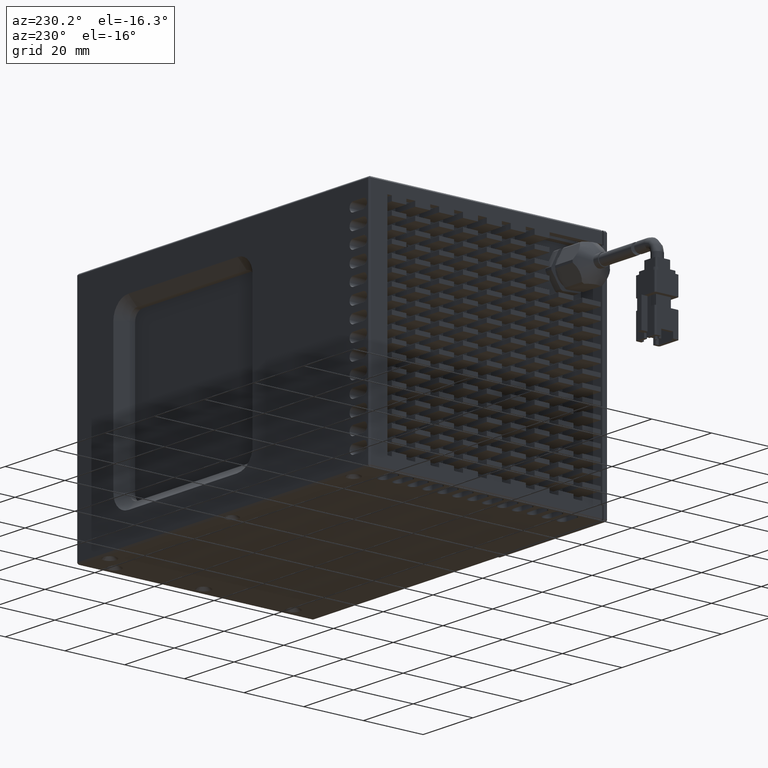
[diagram: clean part render]
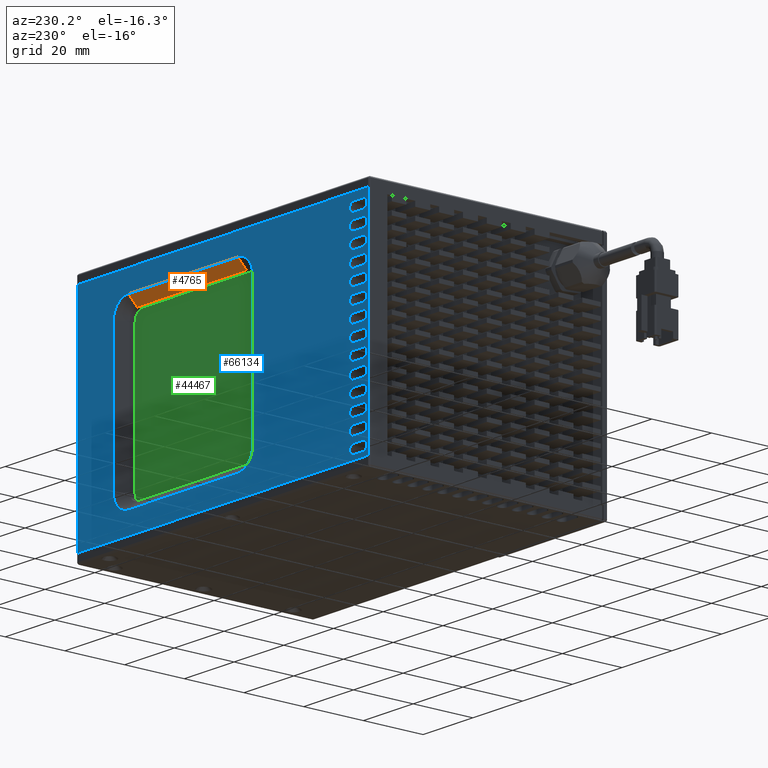
[diagram: same view with three faces highlighted in distinct colors, each labeled with its STEP entity id]
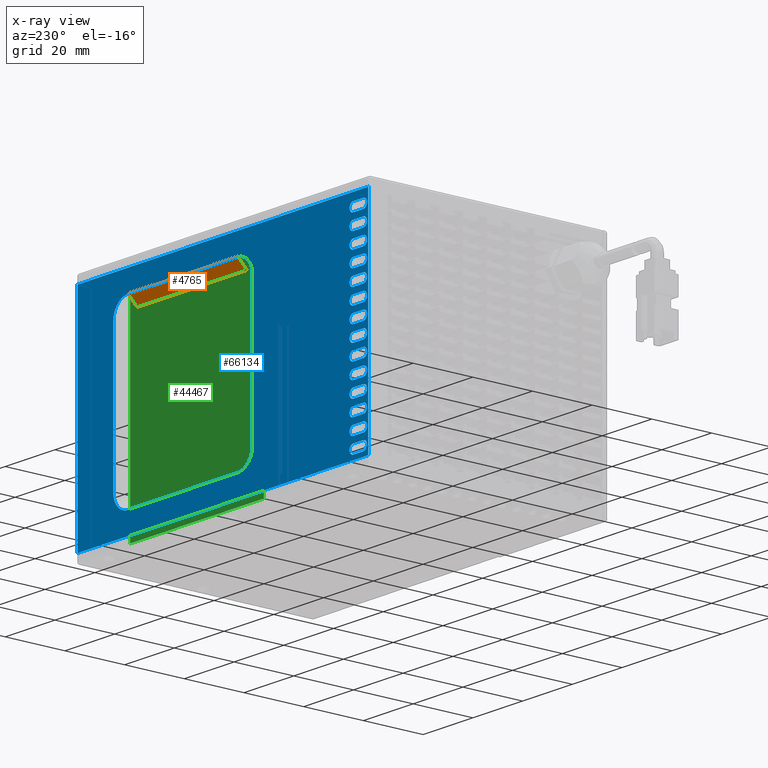
[diagram: x-ray of the same camera — body ghosted, the three highlighted faces saturated]
A machine part, auxiliary view with three faces highlighted in distinct colors.
The next image is the same camera in x-ray (body ghosted, the three faces saturated) — at least one of them is partly hidden behind the body in this view.
Their STEP definitions:

[orange] entity #4765 — the highlighted planar face has unit normal (-0, -0.7071, 0.7071).
#1650 = VECTOR ( 'NONE', #53747, 1000.000000000000100 ) ;
#3551 = VECTOR ( 'NONE', #46112, 1000.000000000000000 ) ;
#4765 = ADVANCED_FACE ( 'NONE', ( #12565 ), #26443, .F. ) ;
#4838 = CARTESIAN_POINT ( 'NONE',  ( -19.96055359734606000, 59.08191075174346500, 64.99999999998043200 ) ) ;
#6240 = VECTOR ( 'NONE', #58391, 1000.000000000000000 ) ;
#9620 = CARTESIAN_POINT ( 'NONE',  ( 24.03944640265395100, 62.08191075174391900, 68.00000000003140600 ) ) ;
#11886 = EDGE_CURVE ( 'NONE', #61746, #34591, #63007, .T. ) ;
#12565 = FACE_OUTER_BOUND ( 'NONE', #39217, .T. ) ;
#14405 = CARTESIAN_POINT ( 'NONE',  ( 45.03944640265394400, 62.08191075172208400, 68.00000000000957800 ) ) ;
#15572 = ORIENTED_EDGE ( 'NONE', *, *, #11886, .F. ) ;
#16344 = VECTOR ( 'NONE', #41524, 1000.000000000000000 ) ;
#18041 = LINE ( 'NONE', #19639, #16344 ) ;
#19639 = CARTESIAN_POINT ( 'NONE',  ( -19.96055359734606000, 59.08191075172209100, 65.00000000000955000 ) ) ;
#19883 = LINE ( 'NONE', #57253, #3551 ) ;
#24361 = EDGE_CURVE ( 'NONE', #70040, #61746, #19883, .T. ) ;
#26443 = PLANE ( 'NONE',  #63884 ) ;
#26678 = CARTESIAN_POINT ( 'NONE',  ( -19.96055359734606000, 59.08191075172209100, 65.00000000000955000 ) ) ;
#32170 = DIRECTION ( 'NONE',  ( 8.059607917364656600E-017, -0.7071067811865459100, -0.7071067811865491300 ) ) ;
#34591 = VERTEX_POINT ( 'NONE', #54414 ) ;
#38618 = EDGE_CURVE ( 'NONE', #51093, #70040, #18041, .T. ) ;
#39217 = EDGE_LOOP ( 'NONE', ( #15572, #68384, #62690, #44572 ) ) ;
#41524 = DIRECTION ( 'NONE',  ( 1.000000000000000000, -1.177236761232564000E-016, 2.317037443647223400E-016 ) ) ;
#43744 = LINE ( 'NONE', #48183, #1650 ) ;
#44572 = ORIENTED_EDGE ( 'NONE', *, *, #57620, .T. ) ;
#46112 = DIRECTION ( 'NONE',  ( -8.059607917364656600E-017, 0.7071067811865459100, 0.7071067811865491300 ) ) ;
#48183 = CARTESIAN_POINT ( 'NONE',  ( -19.96055359749459500, 499056.0819107517600, 499062.0000000022700 ) ) ;
#51093 = VERTEX_POINT ( 'NONE', #4838 ) ;
#53747 = DIRECTION ( 'NONE',  ( -2.104894876089708400E-016, 0.7071067811865459100, 0.7071067811865491300 ) ) ;
#54414 = CARTESIAN_POINT ( 'NONE',  ( -19.96055359734606000, 62.08191075172823000, 67.99999999999408800 ) ) ;
#55175 = CARTESIAN_POINT ( 'NONE',  ( 24.03944640265395400, 59.08191075173277800, 65.00000000000227400 ) ) ;
#57253 = CARTESIAN_POINT ( 'NONE',  ( 24.03944640265395400, 59.08191075172209100, 65.00000000000956400 ) ) ;
#57620 = EDGE_CURVE ( 'NONE', #51093, #34591, #43744, .T. ) ;
#58391 = DIRECTION ( 'NONE',  ( -1.000000000000000000, 1.177236761232564000E-016, -2.317037443647223400E-016 ) ) ;
#61746 = VERTEX_POINT ( 'NONE', #9620 ) ;
#62690 = ORIENTED_EDGE ( 'NONE', *, *, #38618, .F. ) ;
#63007 = LINE ( 'NONE', #14405, #6240 ) ;
#63884 = AXIS2_PLACEMENT_3D ( 'NONE', #26678, #65115, #32170 ) ;
#65115 = DIRECTION ( 'NONE',  ( -2.470824985595727300E-016, -0.7071067811865491300, 0.7071067811865459100 ) ) ;
#68384 = ORIENTED_EDGE ( 'NONE', *, *, #24361, .F. ) ;
#70040 = VERTEX_POINT ( 'NONE', #55175 ) ;

[blue] entity #66134 — the highlighted planar face has unit normal (0, 1, 0).
#59 = CARTESIAN_POINT ( 'NONE',  ( -64.96055359734620500, 62.08191075172209800, 21.00000000000955300 ) ) ;
#126 = EDGE_CURVE ( 'NONE', #36844, #13974, #59918, .T. ) ;
#294 = EDGE_CURVE ( 'NONE', #5257, #20422, #65830, .T. ) ;
#479 = DIRECTION ( 'NONE',  ( -1.177236761232564000E-016, -1.000000000000000000, -2.068595200770913200E-017 ) ) ;
#596 = LINE ( 'NONE', #30599, #29826 ) ;
#611 = CARTESIAN_POINT ( 'NONE',  ( 45.03944640265395800, 62.08191075172208400, 27.50000000000957800 ) ) ;
#710 = EDGE_CURVE ( 'NONE', #45241, #41899, #69997, .T. ) ;
#761 = CARTESIAN_POINT ( 'NONE',  ( -66.46055359734620500, 62.08191075172209800, 51.00000000000956400 ) ) ;
#783 = DIRECTION ( 'NONE',  ( -1.177236761232564000E-016, -1.000000000000000000, -2.068595200770913200E-017 ) ) ;
#836 = ORIENTED_EDGE ( 'NONE', *, *, #21830, .T. ) ;
#854 = VECTOR ( 'NONE', #25310, 1000.000000000000000 ) ;
#858 = VECTOR ( 'NONE', #41574, 1000.000000000000000 ) ;
#1032 = CARTESIAN_POINT ( 'NONE',  ( 45.03944640265395800, 62.08191075172208400, 17.50000000000957800 ) ) ;
#1056 = DIRECTION ( 'NONE',  ( 1.000000000000000000, -1.177236761232564000E-016, 2.317037443647223400E-016 ) ) ;
#1265 = CARTESIAN_POINT ( 'NONE',  ( -70.46055359734620500, 62.08191075172209800, 9.500000000009556800 ) ) ;
#1694 = EDGE_CURVE ( 'NONE', #38810, #58071, #60340, .T. ) ;
#1731 = EDGE_CURVE ( 'NONE', #61763, #5947, #46489, .T. ) ;
#1737 = CARTESIAN_POINT ( 'NONE',  ( -66.46055359734620500, 62.08191075172209800, 62.50000000000956400 ) ) ;
#1853 = ORIENTED_EDGE ( 'NONE', *, *, #5143, .T. ) ;
#1886 = CARTESIAN_POINT ( 'NONE',  ( -66.46055359734620500, 62.08191075172209800, 57.50000000000955700 ) ) ;
#1893 = DIRECTION ( 'NONE',  ( 1.000000000000000000, 0.0000000000000000000, 0.0000000000000000000 ) ) ;
#2030 = CIRCLE ( 'NONE', #7119, 1.500000000000001300 ) ;
#2127 = FACE_BOUND ( 'NONE', #38461, .T. ) ;
#2281 = EDGE_LOOP ( 'NONE', ( #36067, #54011, #55308, #5409, #35682 ) ) ;
#2351 = CIRCLE ( 'NONE', #53167, 1.500000000000001300 ) ;
#2444 = AXIS2_PLACEMENT_3D ( 'NONE', #12283, #50718, #17770 ) ;
#2572 = VECTOR ( 'NONE', #58785, 1000.000000000000000 ) ;
#2622 = VECTOR ( 'NONE', #66843, 1000.000000000000000 ) ;
#2817 = DIRECTION ( 'NONE',  ( -1.177236761232564000E-016, -1.000000000000000000, -2.068595200770913200E-017 ) ) ;
#2953 = AXIS2_PLACEMENT_3D ( 'NONE', #42576, #9646, #48097 ) ;
#2967 = ORIENTED_EDGE ( 'NONE', *, *, #67466, .T. ) ;
#3106 = EDGE_LOOP ( 'NONE', ( #45366, #35536, #38844, #1853, #12569 ) ) ;
#3123 = CARTESIAN_POINT ( 'NONE',  ( -70.46055359734620500, 62.08191075172209800, 56.00000000000956400 ) ) ;
#3198 = DIRECTION ( 'NONE',  ( 1.000000000000000000, -1.177236761232564000E-016, 2.317037443647223400E-016 ) ) ;
#3343 = EDGE_CURVE ( 'NONE', #42578, #9806, #52056, .T. ) ;
#3390 = LINE ( 'NONE', #46034, #30920 ) ;
#3416 = AXIS2_PLACEMENT_3D ( 'NONE', #19534, #58052, #25080 ) ;
#3462 = VERTEX_POINT ( 'NONE', #62603 ) ;
#3603 = EDGE_CURVE ( 'NONE', #27504, #70983, #69169, .T. ) ;
#3814 = FACE_BOUND ( 'NONE', #63386, .T. ) ;
#3909 = CARTESIAN_POINT ( 'NONE',  ( -70.46055359734620500, 62.08191075172209800, 49.50000000000955700 ) ) ;
#3918 = ORIENTED_EDGE ( 'NONE', *, *, #3343, .T. ) ;
#4024 = VERTEX_POINT ( 'NONE', #12306 ) ;
#4249 = LINE ( 'NONE', #47158, #854 ) ;
#4417 = CARTESIAN_POINT ( 'NONE',  ( -70.46055359734620500, 62.08191075172209800, 57.50000000000955700 ) ) ;
#4426 = AXIS2_PLACEMENT_3D ( 'NONE', #61187, #28283, #66694 ) ;
#4473 = ORIENTED_EDGE ( 'NONE', *, *, #58273, .T. ) ;
#4609 = CARTESIAN_POINT ( 'NONE',  ( 45.03944640265395800, 62.08191075172208400, 12.50000000000958000 ) ) ;
#4626 = DIRECTION ( 'NONE',  ( -1.177236761232564000E-016, -1.000000000000000000, -2.068595200770913200E-017 ) ) ;
#4707 = EDGE_CURVE ( 'NONE', #15288, #7533, #40069, .T. ) ;
#4824 = DIRECTION ( 'NONE',  ( 1.000000000000000000, 0.0000000000000000000, 0.0000000000000000000 ) ) ;
#4979 = DIRECTION ( 'NONE',  ( -1.000000000000000000, 1.177236761232564000E-016, -2.317037443647223400E-016 ) ) ;
#5015 = DIRECTION ( 'NONE',  ( 1.000000000000000000, 0.0000000000000000000, 0.0000000000000000000 ) ) ;
#5084 = CARTESIAN_POINT ( 'NONE',  ( -66.46055359734620500, 62.08191075172209800, 11.00000000000955700 ) ) ;
#5102 = EDGE_CURVE ( 'NONE', #55179, #56382, #36468, .T. ) ;
#5143 = EDGE_CURVE ( 'NONE', #67613, #39138, #58852, .T. ) ;
#5257 = VERTEX_POINT ( 'NONE', #9717 ) ;
#5322 = CARTESIAN_POINT ( 'NONE',  ( -66.46055359734620500, 62.08191075172209800, 17.50000000000955000 ) ) ;
#5343 = CARTESIAN_POINT ( 'NONE',  ( -70.46055359734620500, 62.08191075172209800, 69.50000000000955000 ) ) ;
#5362 = CARTESIAN_POINT ( 'NONE',  ( -66.46055359734620500, 62.08191075172209800, 19.50000000000955000 ) ) ;
#5409 = ORIENTED_EDGE ( 'NONE', *, *, #52028, .T. ) ;
#5416 = CIRCLE ( 'NONE', #62715, 1.500000000000001300 ) ;
#5483 = CARTESIAN_POINT ( 'NONE',  ( 45.03944640265395100, 62.08191075172208400, 42.50000000000958500 ) ) ;
#5551 = FACE_BOUND ( 'NONE', #37916, .T. ) ;
#5764 = AXIS2_PLACEMENT_3D ( 'NONE', #35742, #2817, #41273 ) ;
#5868 = ORIENTED_EDGE ( 'NONE', *, *, #49619, .T. ) ;
#5947 = VERTEX_POINT ( 'NONE', #25907 ) ;
#6229 = DIRECTION ( 'NONE',  ( 1.000000000000000000, 0.0000000000000000000, 0.0000000000000000000 ) ) ;
#6240 = VECTOR ( 'NONE', #58391, 1000.000000000000000 ) ;
#6735 = VERTEX_POINT ( 'NONE', #16895 ) ;
#6740 = DIRECTION ( 'NONE',  ( -1.177236761232564000E-016, -1.000000000000000000, -2.068595200770913200E-017 ) ) ;
#6859 = VERTEX_POINT ( 'NONE', #63281 ) ;
#6897 = DIRECTION ( 'NONE',  ( -1.000000000000000000, 1.177236761232564000E-016, -2.317037443647223400E-016 ) ) ;
#6903 = EDGE_CURVE ( 'NONE', #34191, #49808, #596, .T. ) ;
#7030 = CARTESIAN_POINT ( 'NONE',  ( -70.46055359734620500, 62.08191075172209800, 12.50000000000955100 ) ) ;
#7119 = AXIS2_PLACEMENT_3D ( 'NONE', #33376, #479, #38884 ) ;
#7198 = VERTEX_POINT ( 'NONE', #17080 ) ;
#7202 = EDGE_CURVE ( 'NONE', #20422, #60117, #23951, .T. ) ;
#7215 = DIRECTION ( 'NONE',  ( -1.177236761232564000E-016, -1.000000000000000000, -2.068595200770913200E-017 ) ) ;
#7216 = VECTOR ( 'NONE', #66784, 1000.000000000000000 ) ;
#7251 = CARTESIAN_POINT ( 'NONE',  ( 45.03944640265395100, 62.08191075172208400, 49.50000000000958500 ) ) ;
#7283 = FACE_BOUND ( 'NONE', #7789, .T. ) ;
#7287 = ORIENTED_EDGE ( 'NONE', *, *, #55309, .T. ) ;
#7533 = VERTEX_POINT ( 'NONE', #58880 ) ;
#7544 = CIRCLE ( 'NONE', #29460, 5.999999999971812800 ) ;
#7789 = EDGE_LOOP ( 'NONE', ( #16747, #52456, #21940, #42440, #26945 ) ) ;
#7846 = EDGE_LOOP ( 'NONE', ( #51745, #64224, #43328, #70348, #48412 ) ) ;
#7888 = CARTESIAN_POINT ( 'NONE',  ( -70.46055359734620500, 62.08191075172209800, 14.50000000000955300 ) ) ;
#8026 = CARTESIAN_POINT ( 'NONE',  ( -70.46055359734620500, 62.08191075172209800, 26.00000000000955700 ) ) ;
#8204 = EDGE_CURVE ( 'NONE', #27386, #37799, #65711, .T. ) ;
#8247 = DIRECTION ( 'NONE',  ( 1.000000000000000000, -1.177236761232564000E-016, 2.317037443647223400E-016 ) ) ;
#8297 = DIRECTION ( 'NONE',  ( 1.000000000000000000, -1.177236761232564000E-016, 2.317037443647223400E-016 ) ) ;
#8304 = CARTESIAN_POINT ( 'NONE',  ( -70.46055359734620500, 62.08191075172209800, 31.00000000000956000 ) ) ;
#8538 = ORIENTED_EDGE ( 'NONE', *, *, #59858, .T. ) ;
#8616 = DIRECTION ( 'NONE',  ( 1.000000000000000000, 0.0000000000000000000, 0.0000000000000000000 ) ) ;
#8638 = EDGE_CURVE ( 'NONE', #29856, #4024, #57160, .T. ) ;
#9033 = CARTESIAN_POINT ( 'NONE',  ( -66.46055359734620500, 62.08191075172209800, 7.500000000009555000 ) ) ;
#9235 = EDGE_LOOP ( 'NONE', ( #2967, #4473, #23848, #21683, #26744 ) ) ;
#9373 = VERTEX_POINT ( 'NONE', #18817 ) ;
#9386 = VERTEX_POINT ( 'NONE', #51989 ) ;
#9521 = LINE ( 'NONE', #52204, #51675 ) ;
#9620 = CARTESIAN_POINT ( 'NONE',  ( 24.03944640265395100, 62.08191075174391900, 68.00000000003140600 ) ) ;
#9646 = DIRECTION ( 'NONE',  ( -1.177236761232564000E-016, -1.000000000000000000, -2.068595200770913200E-017 ) ) ;
#9665 = VECTOR ( 'NONE', #11009, 1000.000000000000000 ) ;
#9676 = CARTESIAN_POINT ( 'NONE',  ( -64.96055359734620500, 62.08191075172209800, 66.00000000000956400 ) ) ;
#9717 = CARTESIAN_POINT ( 'NONE',  ( -66.46055359734620500, 62.08191075172209800, 72.50000000000955000 ) ) ;
#9749 = AXIS2_PLACEMENT_3D ( 'NONE', #40201, #39960, #39724 ) ;
#9806 = VERTEX_POINT ( 'NONE', #66516 ) ;
#9909 = DIRECTION ( 'NONE',  ( -1.000000000000000000, 1.177236761232564000E-016, -2.317037443647223400E-016 ) ) ;
#9955 = EDGE_CURVE ( 'NONE', #54158, #66994, #3390, .T. ) ;
#10086 = DIRECTION ( 'NONE',  ( -1.177236761232564000E-016, -1.000000000000000000, -2.068595200770913200E-017 ) ) ;
#10390 = CARTESIAN_POINT ( 'NONE',  ( 45.03944640265395100, 62.08191075172208400, 47.50000000000958500 ) ) ;
#10574 = DIRECTION ( 'NONE',  ( 1.000000000000000000, 0.0000000000000000000, 0.0000000000000000000 ) ) ;
#10751 = EDGE_CURVE ( 'NONE', #31527, #59619, #7544, .T. ) ;
#10844 = LINE ( 'NONE', #57872, #67598 ) ;
#10856 = CIRCLE ( 'NONE', #55924, 1.500000000000001300 ) ;
#10862 = CARTESIAN_POINT ( 'NONE',  ( -66.46055359734620500, 62.08191075172209800, 9.500000000009556800 ) ) ;
#10944 = CIRCLE ( 'NONE', #45934, 1.500000000000001300 ) ;
#11009 = DIRECTION ( 'NONE',  ( -1.000000000000000000, 1.177236761232564000E-016, -2.317037443647223400E-016 ) ) ;
#11024 = EDGE_LOOP ( 'NONE', ( #5868, #41802, #65331, #52345, #12458 ) ) ;
#11065 = CIRCLE ( 'NONE', #2444, 1.500000000000001300 ) ;
#11249 = VERTEX_POINT ( 'NONE', #7030 ) ;
#11294 = CARTESIAN_POINT ( 'NONE',  ( -66.46055359734620500, 62.08191075172209800, 51.00000000000956400 ) ) ;
#11438 = EDGE_CURVE ( 'NONE', #55802, #54301, #60591, .T. ) ;
#11479 = CIRCLE ( 'NONE', #19439, 1.500000000000001300 ) ;
#11566 = CIRCLE ( 'NONE', #46502, 1.500000000000001300 ) ;
#11607 = LINE ( 'NONE', #31439, #39129 ) ;
#11626 = EDGE_CURVE ( 'NONE', #41899, #5257, #52802, .T. ) ;
#11771 = DIRECTION ( 'NONE',  ( -1.177236761232564000E-016, -1.000000000000000000, -2.068595200770913200E-017 ) ) ;
#11812 = EDGE_CURVE ( 'NONE', #26237, #31675, #5416, .T. ) ;
#11886 = EDGE_CURVE ( 'NONE', #61746, #34591, #63007, .T. ) ;
#11957 = CARTESIAN_POINT ( 'NONE',  ( -70.46055359734620500, 62.08191075172209800, 51.00000000000955700 ) ) ;
#12001 = CARTESIAN_POINT ( 'NONE',  ( -64.96055359734620500, 62.08191075172209800, 26.00000000000955700 ) ) ;
#12180 = DIRECTION ( 'NONE',  ( 1.177236761232564000E-016, 1.000000000000000000, 2.068595200770913200E-017 ) ) ;
#12283 = CARTESIAN_POINT ( 'NONE',  ( -66.46055359734620500, 62.08191075172209800, 21.00000000000955300 ) ) ;
#12306 = CARTESIAN_POINT ( 'NONE',  ( -64.96055359734620500, 62.08191075172209800, 41.00000000000955700 ) ) ;
#12458 = ORIENTED_EDGE ( 'NONE', *, *, #8204, .T. ) ;
#12515 = AXIS2_PLACEMENT_3D ( 'NONE', #60081, #27157, #65592 ) ;
#12548 = DIRECTION ( 'NONE',  ( -1.177236761232564000E-016, -1.000000000000000000, -2.068595200770913200E-017 ) ) ;
#12569 = ORIENTED_EDGE ( 'NONE', *, *, #54728, .T. ) ;
#12803 = EDGE_CURVE ( 'NONE', #13160, #31213, #17342, .T. ) ;
#12916 = VECTOR ( 'NONE', #64520, 1000.000000000000000 ) ;
#13084 = ORIENTED_EDGE ( 'NONE', *, *, #27400, .T. ) ;
#13160 = VERTEX_POINT ( 'NONE', #55601 ) ;
#13206 = CARTESIAN_POINT ( 'NONE',  ( -66.46055359734620500, 62.08191075172209800, 61.00000000000956400 ) ) ;
#13233 = EDGE_CURVE ( 'NONE', #60168, #38667, #46417, .T. ) ;
#13238 = ORIENTED_EDGE ( 'NONE', *, *, #64934, .T. ) ;
#13416 = CARTESIAN_POINT ( 'NONE',  ( -66.46055359734620500, 62.08191075172209800, 56.00000000000957100 ) ) ;
#13463 = EDGE_CURVE ( 'NONE', #7198, #53050, #44639, .T. ) ;
#13626 = DIRECTION ( 'NONE',  ( 1.000000000000000000, 0.0000000000000000000, 0.0000000000000000000 ) ) ;
#13895 = DIRECTION ( 'NONE',  ( 1.000000000000000000, 0.0000000000000000000, 0.0000000000000000000 ) ) ;
#13974 = VERTEX_POINT ( 'NONE', #67920 ) ;
#13992 = ORIENTED_EDGE ( 'NONE', *, *, #69772, .T. ) ;
#14099 = ORIENTED_EDGE ( 'NONE', *, *, #52511, .T. ) ;
#14113 = ORIENTED_EDGE ( 'NONE', *, *, #70549, .T. ) ;
#14248 = CARTESIAN_POINT ( 'NONE',  ( 45.03944640265395100, 62.08191075172208400, 52.50000000000957800 ) ) ;
#14300 = CARTESIAN_POINT ( 'NONE',  ( 45.03944640265395800, 62.08191075172209100, 10.00000000000954300 ) ) ;
#14405 = CARTESIAN_POINT ( 'NONE',  ( 45.03944640265394400, 62.08191075172208400, 68.00000000000957800 ) ) ;
#14595 = EDGE_CURVE ( 'NONE', #6735, #37683, #29897, .T. ) ;
#14728 = VECTOR ( 'NONE', #4979, 1000.000000000000000 ) ;
#14797 = CIRCLE ( 'NONE', #24442, 1.500000000000001300 ) ;
#15002 = CARTESIAN_POINT ( 'NONE',  ( 45.03944640265395100, 62.08191075172208400, 59.50000000000958500 ) ) ;
#15166 = AXIS2_PLACEMENT_3D ( 'NONE', #13206, #51619, #18677 ) ;
#15288 = VERTEX_POINT ( 'NONE', #45087 ) ;
#15408 = CARTESIAN_POINT ( 'NONE',  ( -66.46055359734620500, 62.08191075172209800, 4.500000000009538100 ) ) ;
#15834 = CARTESIAN_POINT ( 'NONE',  ( -66.46055359734620500, 62.08191075172209800, 54.50000000000956400 ) ) ;
#15877 = DIRECTION ( 'NONE',  ( -1.177236761232564000E-016, -1.000000000000000000, -2.068595200770913200E-017 ) ) ;
#16185 = CARTESIAN_POINT ( 'NONE',  ( 44.53944640265393700, 62.08191075172209100, 75.00000000000956400 ) ) ;
#16389 = VECTOR ( 'NONE', #9909, 1000.000000000000000 ) ;
#16667 = CIRCLE ( 'NONE', #34112, 5.999999999971805700 ) ;
#16712 = FACE_BOUND ( 'NONE', #11024, .T. ) ;
#16747 = ORIENTED_EDGE ( 'NONE', *, *, #710, .T. ) ;
#16856 = EDGE_CURVE ( 'NONE', #19707, #56738, #53552, .T. ) ;
#16895 = CARTESIAN_POINT ( 'NONE',  ( -66.46055359734620500, 62.08191075172209800, 64.50000000000956400 ) ) ;
#17080 = CARTESIAN_POINT ( 'NONE',  ( -72.46055359734602100, 62.08191075172212700, 75.00000000000957800 ) ) ;
#17171 = LINE ( 'NONE', #42178, #2572 ) ;
#17342 = CIRCLE ( 'NONE', #49438, 1.500000000000001300 ) ;
#17453 = DIRECTION ( 'NONE',  ( 1.000000000000000000, 0.0000000000000000000, 0.0000000000000000000 ) ) ;
#17583 = CARTESIAN_POINT ( 'NONE',  ( -25.96055359735927600, 62.08191075173527900, 62.00000000000955000 ) ) ;
#17654 = CARTESIAN_POINT ( 'NONE',  ( -70.46055359734620500, 62.08191075172209800, 46.00000000000956400 ) ) ;
#17699 = LINE ( 'NONE', #61755, #32338 ) ;
#17751 = ORIENTED_EDGE ( 'NONE', *, *, #65533, .T. ) ;
#17770 = DIRECTION ( 'NONE',  ( 1.000000000000000000, 0.0000000000000000000, 0.0000000000000000000 ) ) ;
#17914 = CARTESIAN_POINT ( 'NONE',  ( -70.46055359734620500, 62.08191075172209800, 24.50000000000955000 ) ) ;
#18093 = DIRECTION ( 'NONE',  ( -1.177236761232564000E-016, -1.000000000000000000, -2.068595200770913200E-017 ) ) ;
#18132 = DIRECTION ( 'NONE',  ( -1.177236761232564000E-016, -1.000000000000000000, -2.068595200770913200E-017 ) ) ;
#18270 = ORIENTED_EDGE ( 'NONE', *, *, #1731, .T. ) ;
#18421 = FACE_BOUND ( 'NONE', #2281, .T. ) ;
#18424 = VECTOR ( 'NONE', #31024, 1000.000000000000000 ) ;
#18618 = CARTESIAN_POINT ( 'NONE',  ( -70.46055359734620500, 62.08191075172209800, 62.50000000000956400 ) ) ;
#18677 = DIRECTION ( 'NONE',  ( 1.000000000000000000, 0.0000000000000000000, 0.0000000000000000000 ) ) ;
#18817 = CARTESIAN_POINT ( 'NONE',  ( -70.46055359734620500, 62.08191075172209800, 39.50000000000955700 ) ) ;
#18886 = DIRECTION ( 'NONE',  ( 1.000000000000000000, 0.0000000000000000000, 0.0000000000000000000 ) ) ;
#19208 = EDGE_CURVE ( 'NONE', #13974, #65463, #70626, .T. ) ;
#19439 = AXIS2_PLACEMENT_3D ( 'NONE', #30466, #68903, #35973 ) ;
#19534 = CARTESIAN_POINT ( 'NONE',  ( -66.46055359734620500, 62.08191075172209800, 31.00000000000956000 ) ) ;
#19539 = LINE ( 'NONE', #62497, #32465 ) ;
#19602 = DIRECTION ( 'NONE',  ( -1.177236761232564000E-016, -1.000000000000000000, -2.068595200770913200E-017 ) ) ;
#19707 = VERTEX_POINT ( 'NONE', #70520 ) ;
#19823 = CARTESIAN_POINT ( 'NONE',  ( 44.53944640265396500, 62.08191075172209100, 3.000000000009578100 ) ) ;
#19886 = VERTEX_POINT ( 'NONE', #45206 ) ;
#19919 = EDGE_LOOP ( 'NONE', ( #25115, #59474, #66931, #3918, #69959 ) ) ;
#19929 = CARTESIAN_POINT ( 'NONE',  ( -70.46055359734620500, 62.08191075172209800, 54.50000000000955700 ) ) ;
#20122 = CARTESIAN_POINT ( 'NONE',  ( -66.46055359734620500, 62.08191075172209800, 32.50000000000954300 ) ) ;
#20161 = FACE_BOUND ( 'NONE', #30375, .T. ) ;
#20377 = VERTEX_POINT ( 'NONE', #17583 ) ;
#20422 = VERTEX_POINT ( 'NONE', #34204 ) ;
#20509 = CARTESIAN_POINT ( 'NONE',  ( 45.03944640265396500, 62.08191075172209100, 3.000000000009578100 ) ) ;
#20626 = DIRECTION ( 'NONE',  ( -1.177236761232564000E-016, -1.000000000000000000, -2.068595200770913200E-017 ) ) ;
#20647 = VERTEX_POINT ( 'NONE', #51948 ) ;
#20781 = ORIENTED_EDGE ( 'NONE', *, *, #71219, .T. ) ;
#20809 = CARTESIAN_POINT ( 'NONE',  ( -66.46055359734620500, 62.08191075172209800, 11.00000000000955700 ) ) ;
#20825 = DIRECTION ( 'NONE',  ( -1.177236761232564000E-016, -1.000000000000000000, -2.068595200770913200E-017 ) ) ;
#20832 = DIRECTION ( 'NONE',  ( -1.177236761232564000E-016, -1.000000000000000000, -2.068595200770913200E-017 ) ) ;
#21041 = CARTESIAN_POINT ( 'NONE',  ( -66.46055359734620500, 62.08191075172209800, 59.50000000000955700 ) ) ;
#21601 = EDGE_CURVE ( 'NONE', #7533, #69368, #14797, .T. ) ;
#21613 = CARTESIAN_POINT ( 'NONE',  ( -66.46055359734620500, 62.08191075172209800, 14.50000000000954600 ) ) ;
#21683 = ORIENTED_EDGE ( 'NONE', *, *, #22464, .T. ) ;
#21766 = AXIS2_PLACEMENT_3D ( 'NONE', #33669, #783, #39190 ) ;
#21830 = EDGE_CURVE ( 'NONE', #52639, #57681, #66288, .T. ) ;
#21856 = VECTOR ( 'NONE', #36779, 1000.000000000000000 ) ;
#21888 = ORIENTED_EDGE ( 'NONE', *, *, #19208, .T. ) ;
#21906 = FACE_BOUND ( 'NONE', #56908, .T. ) ;
#21940 = ORIENTED_EDGE ( 'NONE', *, *, #294, .T. ) ;
#21958 = CARTESIAN_POINT ( 'NONE',  ( -64.96055359734620500, 62.08191075172209800, 46.00000000000956400 ) ) ;
#21996 = AXIS2_PLACEMENT_3D ( 'NONE', #51030, #18093, #56609 ) ;
#22127 = LINE ( 'NONE', #41203, #64286 ) ;
#22237 = ORIENTED_EDGE ( 'NONE', *, *, #57159, .T. ) ;
#22278 = AXIS2_PLACEMENT_3D ( 'NONE', #45409, #12548, #50965 ) ;
#22316 = CIRCLE ( 'NONE', #60437, 1.500000000000001300 ) ;
#22443 = VERTEX_POINT ( 'NONE', #37471 ) ;
#22464 = EDGE_CURVE ( 'NONE', #49599, #54158, #22316, .T. ) ;
#22593 = EDGE_CURVE ( 'NONE', #57229, #51198, #11065, .T. ) ;
#22686 = DIRECTION ( 'NONE',  ( -1.000000000000000000, 1.177236761232564000E-016, -2.317037443647223400E-016 ) ) ;
#22917 = AXIS2_PLACEMENT_3D ( 'NONE', #13416, #51835, #18886 ) ;
#23055 = ORIENTED_EDGE ( 'NONE', *, *, #14595, .T. ) ;
#23176 = VERTEX_POINT ( 'NONE', #55972 ) ;
#23238 = DIRECTION ( 'NONE',  ( 1.000000000000000000, 0.0000000000000000000, 0.0000000000000000000 ) ) ;
#23446 = VECTOR ( 'NONE', #52716, 1000.000000000000000 ) ;
#23457 = DIRECTION ( 'NONE',  ( -1.177236761232564000E-016, -1.000000000000000000, -2.068595200770913200E-017 ) ) ;
#23547 = VECTOR ( 'NONE', #22686, 1000.000000000000000 ) ;
#23606 = ORIENTED_EDGE ( 'NONE', *, *, #32207, .T. ) ;
#23667 = CIRCLE ( 'NONE', #68292, 1.500000000000001300 ) ;
#23848 = ORIENTED_EDGE ( 'NONE', *, *, #43173, .T. ) ;
#23942 = DIRECTION ( 'NONE',  ( -1.177236761232564000E-016, -1.000000000000000000, -2.068595200770913200E-017 ) ) ;
#23951 = CIRCLE ( 'NONE', #21766, 1.500000000000001300 ) ;
#23995 = VECTOR ( 'NONE', #58482, 1000.000000000000000 ) ;
#24007 = EDGE_CURVE ( 'NONE', #53091, #11249, #66441, .T. ) ;
#24026 = VERTEX_POINT ( 'NONE', #26767 ) ;
#24049 = VERTEX_POINT ( 'NONE', #32251 ) ;
#24421 = ORIENTED_EDGE ( 'NONE', *, *, #25873, .T. ) ;
#24442 = AXIS2_PLACEMENT_3D ( 'NONE', #56396, #23457, #61912 ) ;
#24991 = ORIENTED_EDGE ( 'NONE', *, *, #60300, .T. ) ;
#25009 = CIRCLE ( 'NONE', #56555, 5.999999999971805700 ) ;
#25080 = DIRECTION ( 'NONE',  ( 1.000000000000000000, 0.0000000000000000000, 0.0000000000000000000 ) ) ;
#25115 = ORIENTED_EDGE ( 'NONE', *, *, #4707, .T. ) ;
#25258 = LINE ( 'NONE', #611, #23547 ) ;
#25310 = DIRECTION ( 'NONE',  ( 1.000000000000000000, -1.177236761232564000E-016, 2.317037443647223400E-016 ) ) ;
#25312 = ORIENTED_EDGE ( 'NONE', *, *, #25842, .T. ) ;
#25319 = EDGE_CURVE ( 'NONE', #46340, #38810, #4249, .T. ) ;
#25509 = CIRCLE ( 'NONE', #59395, 1.500000000000001300 ) ;
#25621 = CARTESIAN_POINT ( 'NONE',  ( 45.03944640265395100, 62.08191075172208400, 37.50000000000957800 ) ) ;
#25672 = CARTESIAN_POINT ( 'NONE',  ( -70.46055359734620500, 62.08191075172209800, 17.50000000000955000 ) ) ;
#25842 = EDGE_CURVE ( 'NONE', #54301, #52639, #34202, .T. ) ;
#25873 = EDGE_CURVE ( 'NONE', #59619, #53205, #19539, .T. ) ;
#25907 = CARTESIAN_POINT ( 'NONE',  ( -70.46055359734620500, 62.08191075172209800, 52.50000000000955000 ) ) ;
#25995 = AXIS2_PLACEMENT_3D ( 'NONE', #63006, #30115, #68524 ) ;
#26013 = CARTESIAN_POINT ( 'NONE',  ( 45.03944640265394400, 62.08191075172208400, 64.50000000000957800 ) ) ;
#26167 = VECTOR ( 'NONE', #40197, 1000.000000000000000 ) ;
#26237 = VERTEX_POINT ( 'NONE', #12001 ) ;
#26381 = DIRECTION ( 'NONE',  ( 1.000000000000000000, 0.0000000000000000000, 0.0000000000000000000 ) ) ;
#26582 = EDGE_CURVE ( 'NONE', #24049, #53091, #11566, .T. ) ;
#26744 = ORIENTED_EDGE ( 'NONE', *, *, #9955, .T. ) ;
#26767 = CARTESIAN_POINT ( 'NONE',  ( 44.53944640265396500, 62.08191075172209100, 3.000000000009578100 ) ) ;
#26945 = ORIENTED_EDGE ( 'NONE', *, *, #67187, .T. ) ;
#27071 = VERTEX_POINT ( 'NONE', #3909 ) ;
#27119 = ORIENTED_EDGE ( 'NONE', *, *, #48928, .T. ) ;
#27157 = DIRECTION ( 'NONE',  ( -1.177236761232564000E-016, -1.000000000000000000, -2.068595200770913200E-017 ) ) ;
#27306 = ORIENTED_EDGE ( 'NONE', *, *, #65319, .T. ) ;
#27386 = VERTEX_POINT ( 'NONE', #1265 ) ;
#27400 = EDGE_CURVE ( 'NONE', #53205, #61746, #51176, .T. ) ;
#27504 = VERTEX_POINT ( 'NONE', #62743 ) ;
#27789 = EDGE_CURVE ( 'NONE', #37683, #36844, #2030, .T. ) ;
#27902 = LINE ( 'NONE', #7251, #26167 ) ;
#28153 = VERTEX_POINT ( 'NONE', #42840 ) ;
#28283 = DIRECTION ( 'NONE',  ( -1.177236761232564000E-016, -1.000000000000000000, -2.068595200770913200E-017 ) ) ;
#28353 = CIRCLE ( 'NONE', #31041, 1.500000000000001300 ) ;
#28542 = ORIENTED_EDGE ( 'NONE', *, *, #60154, .T. ) ;
#28809 = CARTESIAN_POINT ( 'NONE',  ( -25.96055359734608100, 62.08191075172209800, 3.000000000009564300 ) ) ;
#28830 = CARTESIAN_POINT ( 'NONE',  ( -66.46055359734620500, 62.08191075172209800, 67.50000000000955000 ) ) ;
#29259 = LINE ( 'NONE', #39482, #43827 ) ;
#29388 = CIRCLE ( 'NONE', #67387, 1.500000000000001300 ) ;
#29460 = AXIS2_PLACEMENT_3D ( 'NONE', #56891, #23942, #62362 ) ;
#29465 = CARTESIAN_POINT ( 'NONE',  ( -70.46055359734620500, 62.08191075172209800, 59.50000000000955700 ) ) ;
#29597 = CARTESIAN_POINT ( 'NONE',  ( -70.46055359734620500, 62.08191075172209800, 61.00000000000956400 ) ) ;
#29761 = DIRECTION ( 'NONE',  ( 1.000000000000000000, -1.177236761232564000E-016, 2.317037443647223400E-016 ) ) ;
#29774 = DIRECTION ( 'NONE',  ( -1.177236761232564000E-016, -1.000000000000000000, -2.068595200770913200E-017 ) ) ;
#29826 = VECTOR ( 'NONE', #3198, 1000.000000000000000 ) ;
#29856 = VERTEX_POINT ( 'NONE', #48598 ) ;
#29886 = ORIENTED_EDGE ( 'NONE', *, *, #61993, .T. ) ;
#29897 = CIRCLE ( 'NONE', #21996, 1.500000000000001300 ) ;
#30046 = CARTESIAN_POINT ( 'NONE',  ( -66.46055359734620500, 62.08191075172209800, 26.00000000000955700 ) ) ;
#30115 = DIRECTION ( 'NONE',  ( -1.177236761232564000E-016, -1.000000000000000000, -2.068595200770913200E-017 ) ) ;
#30375 = EDGE_LOOP ( 'NONE', ( #23055, #44285, #53778, #21888, #13238 ) ) ;
#30435 = AXIS2_PLACEMENT_3D ( 'NONE', #45037, #12180, #50616 ) ;
#30466 = CARTESIAN_POINT ( 'NONE',  ( -66.46055359734620500, 62.08191075172209800, 46.00000000000956400 ) ) ;
#30599 = CARTESIAN_POINT ( 'NONE',  ( 45.03944640265395800, 62.08191075172208400, 24.50000000000957800 ) ) ;
#30661 = VECTOR ( 'NONE', #71281, 1000.000000000000000 ) ;
#30801 = ORIENTED_EDGE ( 'NONE', *, *, #50028, .T. ) ;
#30887 = CARTESIAN_POINT ( 'NONE',  ( -64.96055359734620500, 62.08191075172209800, 51.00000000000956400 ) ) ;
#30905 = VERTEX_POINT ( 'NONE', #52755 ) ;
#30920 = VECTOR ( 'NONE', #29761, 1000.000000000000000 ) ;
#31024 = DIRECTION ( 'NONE',  ( -1.000000000000000000, 1.177236761232564000E-016, -2.317037443647223400E-016 ) ) ;
#31041 = AXIS2_PLACEMENT_3D ( 'NONE', #17654, #56179, #23238 ) ;
#31213 = VERTEX_POINT ( 'NONE', #21958 ) ;
#31311 = CARTESIAN_POINT ( 'NONE',  ( -70.46055359734620500, 62.08191075172209800, 7.500000000009555000 ) ) ;
#31352 = FACE_BOUND ( 'NONE', #9235, .T. ) ;
#31439 = CARTESIAN_POINT ( 'NONE',  ( 45.03944640265395800, 62.08191075172208400, 22.50000000000958200 ) ) ;
#31456 = AXIS2_PLACEMENT_3D ( 'NONE', #8026, #46469, #13626 ) ;
#31527 = VERTEX_POINT ( 'NONE', #46382 ) ;
#31540 = CARTESIAN_POINT ( 'NONE',  ( -66.46055359734620500, 62.08191075172209800, 46.00000000000956400 ) ) ;
#31661 = CARTESIAN_POINT ( 'NONE',  ( -64.96055359734620500, 62.08191075172209800, 71.00000000000956400 ) ) ;
#31675 = VERTEX_POINT ( 'NONE', #59648 ) ;
#31800 = CIRCLE ( 'NONE', #56351, 1.500000000000001300 ) ;
#31920 = VECTOR ( 'NONE', #41610, 1000.000000000000000 ) ;
#31938 = DIRECTION ( 'NONE',  ( -1.177236761232564000E-016, -1.000000000000000000, -2.068595200770913200E-017 ) ) ;
#32207 = EDGE_CURVE ( 'NONE', #51687, #55179, #44790, .T. ) ;
#32251 = CARTESIAN_POINT ( 'NONE',  ( -64.96055359734620500, 62.08191075172209800, 11.00000000000955700 ) ) ;
#32271 = EDGE_CURVE ( 'NONE', #56382, #42452, #56889, .T. ) ;
#32338 = VECTOR ( 'NONE', #34356, 1000.000000000000000 ) ;
#32465 = VECTOR ( 'NONE', #51667, 1000.000000000000000 ) ;
#32610 = ORIENTED_EDGE ( 'NONE', *, *, #25319, .T. ) ;
#32625 = CARTESIAN_POINT ( 'NONE',  ( -66.46055359734620500, 62.08191075172209800, 6.000000000009553200 ) ) ;
#32718 = DIRECTION ( 'NONE',  ( -1.177236761232564000E-016, -1.000000000000000000, -2.068595200770913200E-017 ) ) ;
#32761 = CARTESIAN_POINT ( 'NONE',  ( -66.46055359734620500, 62.08191075172209800, 12.50000000000955100 ) ) ;
#32784 = ORIENTED_EDGE ( 'NONE', *, *, #1694, .T. ) ;
#32855 = ORIENTED_EDGE ( 'NONE', *, *, #13463, .T. ) ;
#33074 = FACE_BOUND ( 'NONE', #3106, .T. ) ;
#33376 = CARTESIAN_POINT ( 'NONE',  ( -66.46055359734620500, 62.08191075172209800, 66.00000000000956400 ) ) ;
#33669 = CARTESIAN_POINT ( 'NONE',  ( -70.46055359734620500, 62.08191075172209800, 71.00000000000956400 ) ) ;
#33774 = CARTESIAN_POINT ( 'NONE',  ( 30.03944640264740000, 62.08191075171549800, 16.00000000000955000 ) ) ;
#33876 = EDGE_CURVE ( 'NONE', #22443, #19886, #11607, .T. ) ;
#34112 = AXIS2_PLACEMENT_3D ( 'NONE', #51080, #18132, #56664 ) ;
#34191 = VERTEX_POINT ( 'NONE', #17914 ) ;
#34202 = CIRCLE ( 'NONE', #49717, 1.500000000000001300 ) ;
#34204 = CARTESIAN_POINT ( 'NONE',  ( -70.46055359734620500, 62.08191075172209800, 72.50000000000955000 ) ) ;
#34356 = DIRECTION ( 'NONE',  ( 1.000000000000000000, -1.177236761232564000E-016, 2.317037443647223400E-016 ) ) ;
#34373 = EDGE_LOOP ( 'NONE', ( #30801, #49837, #39310, #25312, #836 ) ) ;
#34387 = CIRCLE ( 'NONE', #31456, 1.500000000000001300 ) ;
#34393 = AXIS2_PLACEMENT_3D ( 'NONE', #64859, #31938, #70426 ) ;
#34459 = EDGE_CURVE ( 'NONE', #50574, #13160, #17171, .T. ) ;
#34591 = VERTEX_POINT ( 'NONE', #54414 ) ;
#34619 = LINE ( 'NONE', #14300, #23446 ) ;
#34814 = DIRECTION ( 'NONE',  ( -1.177236761232564000E-016, -1.000000000000000000, -2.068595200770913200E-017 ) ) ;
#34840 = VERTEX_POINT ( 'NONE', #67568 ) ;
#35123 = DIRECTION ( 'NONE',  ( 1.000000000000000000, 0.0000000000000000000, 0.0000000000000000000 ) ) ;
#35147 = VECTOR ( 'NONE', #36428, 1000.000000000000000 ) ;
#35243 = AXIS2_PLACEMENT_3D ( 'NONE', #67710, #34814, #1893 ) ;
#35536 = ORIENTED_EDGE ( 'NONE', *, *, #3603, .T. ) ;
#35541 = DIRECTION ( 'NONE',  ( 1.000000000000000000, 0.0000000000000000000, 0.0000000000000000000 ) ) ;
#35682 = ORIENTED_EDGE ( 'NONE', *, *, #6903, .T. ) ;
#35742 = CARTESIAN_POINT ( 'NONE',  ( -70.46055359734620500, 62.08191075172209800, 11.00000000000955700 ) ) ;
#35839 = ORIENTED_EDGE ( 'NONE', *, *, #10751, .T. ) ;
#35973 = DIRECTION ( 'NONE',  ( 1.000000000000000000, 0.0000000000000000000, 0.0000000000000000000 ) ) ;
#36067 = ORIENTED_EDGE ( 'NONE', *, *, #52275, .T. ) ;
#36211 = EDGE_CURVE ( 'NONE', #27071, #64655, #27902, .T. ) ;
#36428 = DIRECTION ( 'NONE',  ( 2.317037443647223400E-016, 2.068595200770910400E-017, -1.000000000000000000 ) ) ;
#36468 = CIRCLE ( 'NONE', #22917, 1.500000000000001300 ) ;
#36576 = VECTOR ( 'NONE', #40259, 1000.000000000000000 ) ;
#36779 = DIRECTION ( 'NONE',  ( 1.000000000000000000, -1.177236761232564000E-016, 2.317037443647223400E-016 ) ) ;
#36844 = VERTEX_POINT ( 'NONE', #28830 ) ;
#36933 = EDGE_CURVE ( 'NONE', #20647, #55802, #51740, .T. ) ;
#37056 = VECTOR ( 'NONE', #42612, 1000.000000000000000 ) ;
#37058 = DIRECTION ( 'NONE',  ( 1.000000000000000000, 0.0000000000000000000, 0.0000000000000000000 ) ) ;
#37471 = CARTESIAN_POINT ( 'NONE',  ( -66.46055359734620500, 62.08191075172209800, 22.50000000000955300 ) ) ;
#37538 = CARTESIAN_POINT ( 'NONE',  ( -66.46055359734620500, 62.08191075172209800, 41.00000000000955700 ) ) ;
#37683 = VERTEX_POINT ( 'NONE', #9676 ) ;
#37799 = VERTEX_POINT ( 'NONE', #10862 ) ;
#37909 = DIRECTION ( 'NONE',  ( -1.177236761232564000E-016, -1.000000000000000000, -2.068595200770913200E-017 ) ) ;
#37916 = EDGE_LOOP ( 'NONE', ( #42674, #48455, #22237, #14099, #44866 ) ) ;
#38130 = DIRECTION ( 'NONE',  ( 1.000000000000000000, 0.0000000000000000000, 0.0000000000000000000 ) ) ;
#38137 = VERTEX_POINT ( 'NONE', #19929 ) ;
#38461 = EDGE_LOOP ( 'NONE', ( #20781, #8538, #35839, #24421, #13084, #43526, #28542, #48139 ) ) ;
#38536 = CARTESIAN_POINT ( 'NONE',  ( -70.46055359734620500, 62.08191075172209800, 37.50000000000955700 ) ) ;
#38667 = VERTEX_POINT ( 'NONE', #25672 ) ;
#38721 = EDGE_CURVE ( 'NONE', #19886, #68831, #31800, .T. ) ;
#38810 = VERTEX_POINT ( 'NONE', #21613 ) ;
#38844 = ORIENTED_EDGE ( 'NONE', *, *, #66206, .T. ) ;
#38845 = CARTESIAN_POINT ( 'NONE',  ( -70.46055359734620500, 62.08191075172209800, 4.500000000009538100 ) ) ;
#38869 = CARTESIAN_POINT ( 'NONE',  ( -66.46055359734620500, 62.08191075172209800, 37.50000000000955700 ) ) ;
#38884 = DIRECTION ( 'NONE',  ( 1.000000000000000000, 0.0000000000000000000, 0.0000000000000000000 ) ) ;
#39023 = VECTOR ( 'NONE', #47691, 1000.000000000000000 ) ;
#39100 = DIRECTION ( 'NONE',  ( 1.000000000000000000, -1.177236761232564000E-016, 2.317037443647223400E-016 ) ) ;
#39129 = VECTOR ( 'NONE', #47996, 1000.000000000000000 ) ;
#39138 = VERTEX_POINT ( 'NONE', #46981 ) ;
#39163 = DIRECTION ( 'NONE',  ( -1.177236761232564000E-016, -1.000000000000000000, -2.068595200770913200E-017 ) ) ;
#39190 = DIRECTION ( 'NONE',  ( 1.000000000000000000, 0.0000000000000000000, 0.0000000000000000000 ) ) ;
#39310 = ORIENTED_EDGE ( 'NONE', *, *, #11438, .T. ) ;
#39482 = CARTESIAN_POINT ( 'NONE',  ( 45.03944640265395800, 62.08191075172208400, 29.50000000000958900 ) ) ;
#39527 = CARTESIAN_POINT ( 'NONE',  ( -66.46055359734620500, 62.08191075172209800, 49.50000000000956400 ) ) ;
#39667 = CARTESIAN_POINT ( 'NONE',  ( -66.46055359734620500, 62.08191075172209800, 16.00000000000955000 ) ) ;
#39714 = CARTESIAN_POINT ( 'NONE',  ( 30.03944640265748200, 62.08191075173687100, 62.00000000000956400 ) ) ;
#39724 = DIRECTION ( 'NONE',  ( 1.000000000000000000, 0.0000000000000000000, 0.0000000000000000000 ) ) ;
#39851 = DIRECTION ( 'NONE',  ( 2.317037443647223400E-016, 2.068595200770910400E-017, -1.000000000000000000 ) ) ;
#39960 = DIRECTION ( 'NONE',  ( -1.177236761232564000E-016, -1.000000000000000000, -2.068595200770913200E-017 ) ) ;
#40048 = CARTESIAN_POINT ( 'NONE',  ( 45.03944640265395800, 62.08191075172208400, 32.50000000000957100 ) ) ;
#40069 = CIRCLE ( 'NONE', #34393, 1.500000000000001300 ) ;
#40165 = CARTESIAN_POINT ( 'NONE',  ( -70.46055359734620500, 62.08191075172209800, 41.00000000000955700 ) ) ;
#40197 = DIRECTION ( 'NONE',  ( 1.000000000000000000, -1.177236761232564000E-016, 2.317037443647223400E-016 ) ) ;
#40201 = CARTESIAN_POINT ( 'NONE',  ( -66.46055359734620500, 62.08191075172209800, 71.00000000000956400 ) ) ;
#40259 = DIRECTION ( 'NONE',  ( -1.000000000000000000, 1.177236761232564000E-016, -2.317037443647223400E-016 ) ) ;
#40290 = CIRCLE ( 'NONE', #2953, 1.500000000000001300 ) ;
#40413 = LINE ( 'NONE', #20509, #12916 ) ;
#40469 = VECTOR ( 'NONE', #70021, 1000.000000000000000 ) ;
#40497 = CARTESIAN_POINT ( 'NONE',  ( 45.03944640265394400, 62.08191075172208400, 72.50000000000957800 ) ) ;
#41203 = CARTESIAN_POINT ( 'NONE',  ( 45.03944640265395100, 62.08191075172208400, 54.50000000000958500 ) ) ;
#41273 = DIRECTION ( 'NONE',  ( 1.000000000000000000, 0.0000000000000000000, 0.0000000000000000000 ) ) ;
#41563 = DIRECTION ( 'NONE',  ( -1.177236761232564000E-016, -1.000000000000000000, -2.068595200770913200E-017 ) ) ;
#41574 = DIRECTION ( 'NONE',  ( 1.000000000000000000, -1.177236761232564000E-016, 2.317037443647223400E-016 ) ) ;
#41610 = DIRECTION ( 'NONE',  ( -1.000000000000000000, 1.177236761232564000E-016, -2.317037443647223400E-016 ) ) ;
#41802 = ORIENTED_EDGE ( 'NONE', *, *, #26582, .T. ) ;
#41899 = VERTEX_POINT ( 'NONE', #31661 ) ;
#42178 = CARTESIAN_POINT ( 'NONE',  ( 45.03944640265395100, 62.08191075172208400, 44.50000000000958500 ) ) ;
#42440 = ORIENTED_EDGE ( 'NONE', *, *, #7202, .T. ) ;
#42452 = VERTEX_POINT ( 'NONE', #4417 ) ;
#42576 = CARTESIAN_POINT ( 'NONE',  ( -66.46055359734620500, 62.08191075172209800, 6.000000000009553200 ) ) ;
#42578 = VERTEX_POINT ( 'NONE', #38536 ) ;
#42612 = DIRECTION ( 'NONE',  ( 1.000000000000000000, -1.177236761232564000E-016, 2.317037443647223400E-016 ) ) ;
#42674 = ORIENTED_EDGE ( 'NONE', *, *, #12803, .T. ) ;
#42840 = CARTESIAN_POINT ( 'NONE',  ( -25.96055359733196600, 62.08191075174846700, 16.00000000000953500 ) ) ;
#43020 = CIRCLE ( 'NONE', #62529, 1.500000000000001300 ) ;
#43035 = CARTESIAN_POINT ( 'NONE',  ( -70.46055359734620500, 62.08191075172209800, 36.00000000000955000 ) ) ;
#43086 = DIRECTION ( 'NONE',  ( 1.000000000000000000, 0.0000000000000000000, 0.0000000000000000000 ) ) ;
#43173 = EDGE_CURVE ( 'NONE', #54886, #49599, #51074, .T. ) ;
#43328 = ORIENTED_EDGE ( 'NONE', *, *, #16856, .T. ) ;
#43499 = DIRECTION ( 'NONE',  ( -1.177236761232564000E-016, -1.000000000000000000, -2.068595200770913200E-017 ) ) ;
#43526 = ORIENTED_EDGE ( 'NONE', *, *, #11886, .T. ) ;
#43827 = VECTOR ( 'NONE', #1056, 1000.000000000000000 ) ;
#44285 = ORIENTED_EDGE ( 'NONE', *, *, #27789, .T. ) ;
#44639 = LINE ( 'NONE', #47079, #858 ) ;
#44659 = CARTESIAN_POINT ( 'NONE',  ( -70.46055359734620500, 62.08191075172209800, 16.00000000000955000 ) ) ;
#44790 = CIRCLE ( 'NONE', #51757, 1.500000000000001300 ) ;
#44866 = ORIENTED_EDGE ( 'NONE', *, *, #34459, .T. ) ;
#44931 = EDGE_CURVE ( 'NONE', #68831, #57229, #60020, .T. ) ;
#44942 = EDGE_CURVE ( 'NONE', #5947, #27071, #61751, .T. ) ;
#44961 = AXIS2_PLACEMENT_3D ( 'NONE', #8304, #46720, #13895 ) ;
#45037 = CARTESIAN_POINT ( 'NONE',  ( 45.03944640265396500, 62.08191075172209100, 3.000000000009578100 ) ) ;
#45087 = CARTESIAN_POINT ( 'NONE',  ( -66.46055359734620500, 62.08191075172209800, 34.50000000000955000 ) ) ;
#45123 = CARTESIAN_POINT ( 'NONE',  ( -66.46055359734620500, 62.08191075172209800, 24.50000000000955700 ) ) ;
#45141 = DIRECTION ( 'NONE',  ( 1.000000000000000000, 0.0000000000000000000, 0.0000000000000000000 ) ) ;
#45206 = CARTESIAN_POINT ( 'NONE',  ( -70.46055359734620500, 62.08191075172209800, 22.50000000000955300 ) ) ;
#45241 = VERTEX_POINT ( 'NONE', #46966 ) ;
#45256 = CARTESIAN_POINT ( 'NONE',  ( -64.96055359734620500, 62.08191075172209800, 56.00000000000957100 ) ) ;
#45334 = VECTOR ( 'NONE', #39100, 1000.000000000000000 ) ;
#45366 = ORIENTED_EDGE ( 'NONE', *, *, #59239, .T. ) ;
#45409 = CARTESIAN_POINT ( 'NONE',  ( 24.03944640265395400, 62.08191075176575400, 62.00000000000955700 ) ) ;
#45626 = DIRECTION ( 'NONE',  ( 1.000000000000000000, 0.0000000000000000000, 0.0000000000000000000 ) ) ;
#45853 = EDGE_CURVE ( 'NONE', #9806, #15288, #9521, .T. ) ;
#45913 = FACE_OUTER_BOUND ( 'NONE', #48807, .T. ) ;
#45934 = AXIS2_PLACEMENT_3D ( 'NONE', #11294, #56673, #4824 ) ;
#46034 = CARTESIAN_POINT ( 'NONE',  ( 45.03944640265395800, 62.08191075172209100, 4.500000000009565700 ) ) ;
#46340 = VERTEX_POINT ( 'NONE', #7888 ) ;
#46382 = CARTESIAN_POINT ( 'NONE',  ( 24.03944640265396500, 62.08191075171550500, 10.00000000001612000 ) ) ;
#46417 = LINE ( 'NONE', #1032, #2622 ) ;
#46469 = DIRECTION ( 'NONE',  ( -1.177236761232564000E-016, -1.000000000000000000, -2.068595200770913200E-017 ) ) ;
#46489 = LINE ( 'NONE', #14248, #31920 ) ;
#46502 = AXIS2_PLACEMENT_3D ( 'NONE', #20809, #59316, #26381 ) ;
#46598 = ORIENTED_EDGE ( 'NONE', *, *, #32271, .T. ) ;
#46720 = DIRECTION ( 'NONE',  ( -1.177236761232564000E-016, -1.000000000000000000, -2.068595200770913200E-017 ) ) ;
#46966 = CARTESIAN_POINT ( 'NONE',  ( -66.46055359734620500, 62.08191075172209800, 69.50000000000955000 ) ) ;
#46981 = CARTESIAN_POINT ( 'NONE',  ( -70.46055359734620500, 62.08191075172209800, 29.50000000000956000 ) ) ;
#47079 = CARTESIAN_POINT ( 'NONE',  ( 45.03944640265394400, 62.08191075172208400, 75.00000000000957800 ) ) ;
#47158 = CARTESIAN_POINT ( 'NONE',  ( 45.03944640265395800, 62.08191075172208400, 14.50000000000958200 ) ) ;
#47192 = EDGE_CURVE ( 'NONE', #9373, #29856, #10844, .T. ) ;
#47667 = FACE_BOUND ( 'NONE', #19919, .T. ) ;
#47691 = DIRECTION ( 'NONE',  ( -1.000000000000000000, 1.177236761232564000E-016, -2.317037443647223400E-016 ) ) ;
#47904 = EDGE_LOOP ( 'NONE', ( #32784, #24991, #48597, #70444, #32610 ) ) ;
#47996 = DIRECTION ( 'NONE',  ( -1.000000000000000000, 1.177236761232564000E-016, -2.317037443647223400E-016 ) ) ;
#48097 = DIRECTION ( 'NONE',  ( 1.000000000000000000, 0.0000000000000000000, 0.0000000000000000000 ) ) ;
#48139 = ORIENTED_EDGE ( 'NONE', *, *, #64119, .T. ) ;
#48223 = CIRCLE ( 'NONE', #70554, 1.500000000000001300 ) ;
#48300 = AXIS2_PLACEMENT_3D ( 'NONE', #761, #39163, #6229 ) ;
#48412 = ORIENTED_EDGE ( 'NONE', *, *, #47192, .T. ) ;
#48455 = ORIENTED_EDGE ( 'NONE', *, *, #56494, .T. ) ;
#48537 = DIRECTION ( 'NONE',  ( 1.000000000000000000, 0.0000000000000000000, 0.0000000000000000000 ) ) ;
#48582 = DIRECTION ( 'NONE',  ( -1.000000000000000000, 1.177236761232564000E-016, -2.317037443647223400E-016 ) ) ;
#48597 = ORIENTED_EDGE ( 'NONE', *, *, #13233, .T. ) ;
#48598 = CARTESIAN_POINT ( 'NONE',  ( -66.46055359734620500, 62.08191075172209800, 39.50000000000955700 ) ) ;
#48723 = CIRCLE ( 'NONE', #52763, 1.500000000000001300 ) ;
#48762 = CARTESIAN_POINT ( 'NONE',  ( -70.46055359734620500, 62.08191075172209800, 6.000000000009553200 ) ) ;
#48807 = EDGE_LOOP ( 'NONE', ( #32855, #13992, #62706, #27306 ) ) ;
#48928 = EDGE_CURVE ( 'NONE', #51198, #22443, #29388, .T. ) ;
#49142 = AXIS2_PLACEMENT_3D ( 'NONE', #43035, #10086, #48537 ) ;
#49404 = FACE_BOUND ( 'NONE', #60927, .T. ) ;
#49438 = AXIS2_PLACEMENT_3D ( 'NONE', #31540, #70007, #37058 ) ;
#49493 = AXIS2_PLACEMENT_3D ( 'NONE', #5084, #43499, #10574 ) ;
#49599 = VERTEX_POINT ( 'NONE', #31311 ) ;
#49619 = EDGE_CURVE ( 'NONE', #37799, #24049, #59252, .T. ) ;
#49717 = AXIS2_PLACEMENT_3D ( 'NONE', #29597, #67994, #35123 ) ;
#49752 = LINE ( 'NONE', #19823, #35147 ) ;
#49808 = VERTEX_POINT ( 'NONE', #45123 ) ;
#49837 = ORIENTED_EDGE ( 'NONE', *, *, #36933, .T. ) ;
#50028 = EDGE_CURVE ( 'NONE', #57681, #20647, #48723, .T. ) ;
#50211 = DIRECTION ( 'NONE',  ( 1.000000000000000000, 0.0000000000000000000, 0.0000000000000000000 ) ) ;
#50257 = LINE ( 'NONE', #28809, #61454 ) ;
#50387 = DIRECTION ( 'NONE',  ( -1.177236761232564000E-016, -1.000000000000000000, -2.068595200770913200E-017 ) ) ;
#50465 = EDGE_CURVE ( 'NONE', #69368, #42578, #51905, .T. ) ;
#50574 = VERTEX_POINT ( 'NONE', #59981 ) ;
#50616 = DIRECTION ( 'NONE',  ( 1.000000000000000000, -1.177236761232564000E-016, 2.317037443647223400E-016 ) ) ;
#50718 = DIRECTION ( 'NONE',  ( -1.177236761232564000E-016, -1.000000000000000000, -2.068595200770913200E-017 ) ) ;
#50956 = ORIENTED_EDGE ( 'NONE', *, *, #33876, .T. ) ;
#50965 = DIRECTION ( 'NONE',  ( 1.000000000000000000, 0.0000000000000000000, 1.156482317312349300E-015 ) ) ;
#51030 = CARTESIAN_POINT ( 'NONE',  ( -66.46055359734620500, 62.08191075172209800, 66.00000000000956400 ) ) ;
#51074 = LINE ( 'NONE', #61291, #7216 ) ;
#51080 = CARTESIAN_POINT ( 'NONE',  ( -19.96055359734604600, 62.08191075174846700, 16.00000000000954300 ) ) ;
#51176 = CIRCLE ( 'NONE', #22278, 6.000000000028649100 ) ;
#51198 = VERTEX_POINT ( 'NONE', #59 ) ;
#51199 = CARTESIAN_POINT ( 'NONE',  ( -70.46055359734620500, 62.08191075172209800, 19.50000000000955000 ) ) ;
#51370 = AXIS2_PLACEMENT_3D ( 'NONE', #62680, #29774, #68172 ) ;
#51619 = DIRECTION ( 'NONE',  ( -1.177236761232564000E-016, -1.000000000000000000, -2.068595200770913200E-017 ) ) ;
#51667 = DIRECTION ( 'NONE',  ( -2.317037443647223400E-016, -2.068595200770910400E-017, 1.000000000000000000 ) ) ;
#51675 = VECTOR ( 'NONE', #63262, 1000.000000000000000 ) ;
#51687 = VERTEX_POINT ( 'NONE', #15834 ) ;
#51740 = CIRCLE ( 'NONE', #15166, 1.500000000000001300 ) ;
#51745 = ORIENTED_EDGE ( 'NONE', *, *, #8638, .T. ) ;
#51757 = AXIS2_PLACEMENT_3D ( 'NONE', #53771, #20832, #59336 ) ;
#51821 = VECTOR ( 'NONE', #48582, 1000.000000000000000 ) ;
#51835 = DIRECTION ( 'NONE',  ( -1.177236761232564000E-016, -1.000000000000000000, -2.068595200770913200E-017 ) ) ;
#51905 = LINE ( 'NONE', #25621, #39023 ) ;
#51948 = CARTESIAN_POINT ( 'NONE',  ( -64.96055359734620500, 62.08191075172209800, 61.00000000000956400 ) ) ;
#51989 = CARTESIAN_POINT ( 'NONE',  ( -66.46055359734620500, 62.08191075172209800, 29.50000000000956000 ) ) ;
#52028 = EDGE_CURVE ( 'NONE', #34840, #34191, #34387, .T. ) ;
#52056 = CIRCLE ( 'NONE', #49142, 1.500000000000001300 ) ;
#52204 = CARTESIAN_POINT ( 'NONE',  ( 45.03944640265395100, 62.08191075172208400, 34.50000000000957800 ) ) ;
#52275 = EDGE_CURVE ( 'NONE', #49808, #26237, #64528, .T. ) ;
#52345 = ORIENTED_EDGE ( 'NONE', *, *, #64296, .T. ) ;
#52456 = ORIENTED_EDGE ( 'NONE', *, *, #11626, .T. ) ;
#52511 = EDGE_CURVE ( 'NONE', #3462, #50574, #28353, .T. ) ;
#52556 = CARTESIAN_POINT ( 'NONE',  ( -66.46055359734620500, 62.08191075172209800, 21.00000000000955300 ) ) ;
#52639 = VERTEX_POINT ( 'NONE', #29465 ) ;
#52716 = DIRECTION ( 'NONE',  ( 1.000000000000000000, -1.177236761232564000E-016, 2.317037443647223400E-016 ) ) ;
#52755 = CARTESIAN_POINT ( 'NONE',  ( -66.46055359734620500, 62.08191075172209800, 47.50000000000956400 ) ) ;
#52763 = AXIS2_PLACEMENT_3D ( 'NONE', #70885, #37909, #5015 ) ;
#52802 = CIRCLE ( 'NONE', #12515, 1.500000000000001300 ) ;
#52910 = CARTESIAN_POINT ( 'NONE',  ( -72.46055359734602100, 62.08191075172210600, 3.000000000009550600 ) ) ;
#53050 = VERTEX_POINT ( 'NONE', #16185 ) ;
#53091 = VERTEX_POINT ( 'NONE', #32761 ) ;
#53167 = AXIS2_PLACEMENT_3D ( 'NONE', #40165, #7215, #45626 ) ;
#53205 = VERTEX_POINT ( 'NONE', #39714 ) ;
#53552 = LINE ( 'NONE', #5483, #9665 ) ;
#53583 = CARTESIAN_POINT ( 'NONE',  ( -70.46055359734620500, 62.08191075172209800, 21.00000000000955300 ) ) ;
#53764 = CARTESIAN_POINT ( 'NONE',  ( -66.46055359734620500, 62.08191075172209800, 26.00000000000955700 ) ) ;
#53771 = CARTESIAN_POINT ( 'NONE',  ( -66.46055359734620500, 62.08191075172209800, 56.00000000000957100 ) ) ;
#53778 = ORIENTED_EDGE ( 'NONE', *, *, #126, .T. ) ;
#54011 = ORIENTED_EDGE ( 'NONE', *, *, #11812, .T. ) ;
#54158 = VERTEX_POINT ( 'NONE', #38845 ) ;
#54301 = VERTEX_POINT ( 'NONE', #18618 ) ;
#54317 = DIRECTION ( 'NONE',  ( 1.000000000000000000, 0.0000000000000000000, 0.0000000000000000000 ) ) ;
#54414 = CARTESIAN_POINT ( 'NONE',  ( -19.96055359734606000, 62.08191075172823000, 67.99999999999408800 ) ) ;
#54516 = EDGE_CURVE ( 'NONE', #24026, #6859, #40413, .T. ) ;
#54728 = EDGE_CURVE ( 'NONE', #39138, #9386, #29259, .T. ) ;
#54886 = VERTEX_POINT ( 'NONE', #9033 ) ;
#55179 = VERTEX_POINT ( 'NONE', #45256 ) ;
#55238 = VERTEX_POINT ( 'NONE', #67630 ) ;
#55308 = ORIENTED_EDGE ( 'NONE', *, *, #68103, .T. ) ;
#55309 = EDGE_CURVE ( 'NONE', #38137, #51687, #22127, .T. ) ;
#55601 = CARTESIAN_POINT ( 'NONE',  ( -66.46055359734620500, 62.08191075172209800, 44.50000000000955700 ) ) ;
#55706 = CARTESIAN_POINT ( 'NONE',  ( -70.46055359734620500, 62.08191075172209800, 42.50000000000955700 ) ) ;
#55738 = ORIENTED_EDGE ( 'NONE', *, *, #38721, .T. ) ;
#55802 = VERTEX_POINT ( 'NONE', #1737 ) ;
#55924 = AXIS2_PLACEMENT_3D ( 'NONE', #37538, #4626, #43086 ) ;
#55951 = PLANE ( 'NONE',  #30435 ) ;
#55972 = CARTESIAN_POINT ( 'NONE',  ( -64.96055359734620500, 62.08191075172209800, 6.000000000009553200 ) ) ;
#56179 = DIRECTION ( 'NONE',  ( -1.177236761232564000E-016, -1.000000000000000000, -2.068595200770913200E-017 ) ) ;
#56351 = AXIS2_PLACEMENT_3D ( 'NONE', #53583, #20626, #59125 ) ;
#56382 = VERTEX_POINT ( 'NONE', #1886 ) ;
#56396 = CARTESIAN_POINT ( 'NONE',  ( -66.46055359734620500, 62.08191075172209800, 36.00000000000955000 ) ) ;
#56494 = EDGE_CURVE ( 'NONE', #31213, #30905, #11479, .T. ) ;
#56555 = AXIS2_PLACEMENT_3D ( 'NONE', #65640, #32718, #71170 ) ;
#56609 = DIRECTION ( 'NONE',  ( 1.000000000000000000, 0.0000000000000000000, 0.0000000000000000000 ) ) ;
#56664 = DIRECTION ( 'NONE',  ( 1.000000000000000000, 0.0000000000000000000, 0.0000000000000000000 ) ) ;
#56673 = DIRECTION ( 'NONE',  ( -1.177236761232564000E-016, -1.000000000000000000, -2.068595200770913200E-017 ) ) ;
#56716 = ORIENTED_EDGE ( 'NONE', *, *, #36211, .T. ) ;
#56738 = VERTEX_POINT ( 'NONE', #55706 ) ;
#56889 = LINE ( 'NONE', #71074, #14728 ) ;
#56891 = CARTESIAN_POINT ( 'NONE',  ( 24.03944640265396500, 62.08191075170891800, 16.00000000000955000 ) ) ;
#56908 = EDGE_LOOP ( 'NONE', ( #23606, #65604, #46598, #29886, #7287 ) ) ;
#57032 = ORIENTED_EDGE ( 'NONE', *, *, #44931, .T. ) ;
#57159 = EDGE_CURVE ( 'NONE', #30905, #3462, #58566, .T. ) ;
#57160 = CIRCLE ( 'NONE', #35243, 1.500000000000001300 ) ;
#57229 = VERTEX_POINT ( 'NONE', #5362 ) ;
#57681 = VERTEX_POINT ( 'NONE', #21041 ) ;
#57872 = CARTESIAN_POINT ( 'NONE',  ( 45.03944640265395100, 62.08191075172208400, 39.50000000000958500 ) ) ;
#58052 = DIRECTION ( 'NONE',  ( -1.177236761232564000E-016, -1.000000000000000000, -2.068595200770913200E-017 ) ) ;
#58071 = VERTEX_POINT ( 'NONE', #62336 ) ;
#58115 = DIRECTION ( 'NONE',  ( 1.000000000000000000, 0.0000000000000000000, 0.0000000000000000000 ) ) ;
#58273 = EDGE_CURVE ( 'NONE', #23176, #54886, #40290, .T. ) ;
#58391 = DIRECTION ( 'NONE',  ( -1.000000000000000000, 1.177236761232564000E-016, -2.317037443647223400E-016 ) ) ;
#58482 = DIRECTION ( 'NONE',  ( -2.317037443647223400E-016, -2.068595200770910400E-017, 1.000000000000000000 ) ) ;
#58566 = LINE ( 'NONE', #10390, #16389 ) ;
#58626 = EDGE_CURVE ( 'NONE', #56738, #9373, #2351, .T. ) ;
#58785 = DIRECTION ( 'NONE',  ( 1.000000000000000000, -1.177236761232564000E-016, 2.317037443647223400E-016 ) ) ;
#58852 = CIRCLE ( 'NONE', #44961, 1.500000000000001300 ) ;
#58880 = CARTESIAN_POINT ( 'NONE',  ( -64.96055359734620500, 62.08191075172209800, 36.00000000000955000 ) ) ;
#59125 = DIRECTION ( 'NONE',  ( 1.000000000000000000, 0.0000000000000000000, 0.0000000000000000000 ) ) ;
#59239 = EDGE_CURVE ( 'NONE', #9386, #27504, #70979, .T. ) ;
#59252 = CIRCLE ( 'NONE', #49493, 1.500000000000001300 ) ;
#59316 = DIRECTION ( 'NONE',  ( -1.177236761232564000E-016, -1.000000000000000000, -2.068595200770913200E-017 ) ) ;
#59332 = DIRECTION ( 'NONE',  ( 1.000000000000000000, 0.0000000000000000000, 0.0000000000000000000 ) ) ;
#59336 = DIRECTION ( 'NONE',  ( 1.000000000000000000, 0.0000000000000000000, 0.0000000000000000000 ) ) ;
#59395 = AXIS2_PLACEMENT_3D ( 'NONE', #44659, #11771, #50211 ) ;
#59425 = CARTESIAN_POINT ( 'NONE',  ( -66.46055359734620500, 62.08191075172209800, 52.50000000000955000 ) ) ;
#59474 = ORIENTED_EDGE ( 'NONE', *, *, #21601, .T. ) ;
#59582 = AXIS2_PLACEMENT_3D ( 'NONE', #53764, #20825, #59332 ) ;
#59619 = VERTEX_POINT ( 'NONE', #33774 ) ;
#59648 = CARTESIAN_POINT ( 'NONE',  ( -66.46055359734620500, 62.08191075172209800, 27.50000000000955300 ) ) ;
#59720 = VECTOR ( 'NONE', #6897, 1000.000000000000000 ) ;
#59858 = EDGE_CURVE ( 'NONE', #55238, #31527, #34619, .T. ) ;
#59918 = LINE ( 'NONE', #67617, #30661 ) ;
#59981 = CARTESIAN_POINT ( 'NONE',  ( -70.46055359734620500, 62.08191075172209800, 44.50000000000955700 ) ) ;
#60020 = LINE ( 'NONE', #66490, #45334 ) ;
#60081 = CARTESIAN_POINT ( 'NONE',  ( -66.46055359734620500, 62.08191075172209800, 71.00000000000956400 ) ) ;
#60117 = VERTEX_POINT ( 'NONE', #5343 ) ;
#60154 = EDGE_CURVE ( 'NONE', #34591, #20377, #25009, .T. ) ;
#60168 = VERTEX_POINT ( 'NONE', #5322 ) ;
#60300 = EDGE_CURVE ( 'NONE', #58071, #60168, #43020, .T. ) ;
#60340 = CIRCLE ( 'NONE', #25995, 1.500000000000001300 ) ;
#60437 = AXIS2_PLACEMENT_3D ( 'NONE', #48762, #15877, #54317 ) ;
#60590 = FACE_BOUND ( 'NONE', #47904, .T. ) ;
#60591 = LINE ( 'NONE', #63968, #18424 ) ;
#60891 = ORIENTED_EDGE ( 'NONE', *, *, #22593, .T. ) ;
#60927 = EDGE_LOOP ( 'NONE', ( #17751, #14113, #18270, #66855, #56716 ) ) ;
#61187 = CARTESIAN_POINT ( 'NONE',  ( -70.46055359734620500, 62.08191075172209800, 66.00000000000956400 ) ) ;
#61291 = CARTESIAN_POINT ( 'NONE',  ( 45.03944640265395800, 62.08191075172209100, 7.500000000009582600 ) ) ;
#61432 = LINE ( 'NONE', #40048, #59720 ) ;
#61454 = VECTOR ( 'NONE', #39851, 1000.000000000000000 ) ;
#61458 = CARTESIAN_POINT ( 'NONE',  ( -70.46055359734620500, 62.08191075172209800, 32.50000000000954300 ) ) ;
#61712 = CIRCLE ( 'NONE', #48300, 1.500000000000001300 ) ;
#61746 = VERTEX_POINT ( 'NONE', #9620 ) ;
#61751 = CIRCLE ( 'NONE', #63426, 1.500000000000001300 ) ;
#61755 = CARTESIAN_POINT ( 'NONE',  ( 45.03944640265394400, 62.08191075172208400, 69.50000000000957800 ) ) ;
#61763 = VERTEX_POINT ( 'NONE', #59425 ) ;
#61912 = DIRECTION ( 'NONE',  ( 1.000000000000000000, 0.0000000000000000000, 0.0000000000000000000 ) ) ;
#61993 = EDGE_CURVE ( 'NONE', #42452, #38137, #48223, .T. ) ;
#62315 = FACE_BOUND ( 'NONE', #7846, .T. ) ;
#62336 = CARTESIAN_POINT ( 'NONE',  ( -64.96055359734620500, 62.08191075172209800, 16.00000000000955000 ) ) ;
#62362 = DIRECTION ( 'NONE',  ( 1.000000000000000000, 0.0000000000000000000, 0.0000000000000000000 ) ) ;
#62497 = CARTESIAN_POINT ( 'NONE',  ( 30.03944640265398600, 62.08191075172209100, 3.000000000009578100 ) ) ;
#62529 = AXIS2_PLACEMENT_3D ( 'NONE', #39667, #6740, #45141 ) ;
#62603 = CARTESIAN_POINT ( 'NONE',  ( -70.46055359734620500, 62.08191075172209800, 47.50000000000955700 ) ) ;
#62680 = CARTESIAN_POINT ( 'NONE',  ( -66.46055359734620500, 62.08191075172209800, 31.00000000000956000 ) ) ;
#62706 = ORIENTED_EDGE ( 'NONE', *, *, #54516, .T. ) ;
#62715 = AXIS2_PLACEMENT_3D ( 'NONE', #30046, #68439, #35541 ) ;
#62743 = CARTESIAN_POINT ( 'NONE',  ( -64.96055359734620500, 62.08191075172209800, 31.00000000000956000 ) ) ;
#63006 = CARTESIAN_POINT ( 'NONE',  ( -66.46055359734620500, 62.08191075172209800, 16.00000000000955000 ) ) ;
#63007 = LINE ( 'NONE', #14405, #6240 ) ;
#63203 = EDGE_CURVE ( 'NONE', #4024, #19707, #10856, .T. ) ;
#63262 = DIRECTION ( 'NONE',  ( 1.000000000000000000, -1.177236761232564000E-016, 2.317037443647223400E-016 ) ) ;
#63281 = CARTESIAN_POINT ( 'NONE',  ( -72.46055359734602100, 62.08191075172211300, 3.000000000009550600 ) ) ;
#63386 = EDGE_LOOP ( 'NONE', ( #60891, #27119, #50956, #55738, #57032 ) ) ;
#63426 = AXIS2_PLACEMENT_3D ( 'NONE', #11957, #50387, #17453 ) ;
#63968 = CARTESIAN_POINT ( 'NONE',  ( 45.03944640265395100, 62.08191075172208400, 62.50000000000957800 ) ) ;
#64069 = FACE_BOUND ( 'NONE', #34373, .T. ) ;
#64119 = EDGE_CURVE ( 'NONE', #20377, #28153, #50257, .T. ) ;
#64224 = ORIENTED_EDGE ( 'NONE', *, *, #63203, .T. ) ;
#64286 = VECTOR ( 'NONE', #8247, 1000.000000000000000 ) ;
#64296 = EDGE_CURVE ( 'NONE', #11249, #27386, #70017, .T. ) ;
#64520 = DIRECTION ( 'NONE',  ( -1.000000000000000000, 1.177236761232564000E-016, -2.317037443647223400E-016 ) ) ;
#64528 = CIRCLE ( 'NONE', #59582, 1.500000000000001300 ) ;
#64655 = VERTEX_POINT ( 'NONE', #39527 ) ;
#64859 = CARTESIAN_POINT ( 'NONE',  ( -66.46055359734620500, 62.08191075172209800, 36.00000000000955000 ) ) ;
#64934 = EDGE_CURVE ( 'NONE', #65463, #6735, #69721, .T. ) ;
#65319 = EDGE_CURVE ( 'NONE', #6859, #7198, #67805, .T. ) ;
#65331 = ORIENTED_EDGE ( 'NONE', *, *, #24007, .T. ) ;
#65463 = VERTEX_POINT ( 'NONE', #71148 ) ;
#65533 = EDGE_CURVE ( 'NONE', #64655, #66361, #61712, .T. ) ;
#65592 = DIRECTION ( 'NONE',  ( 1.000000000000000000, 0.0000000000000000000, 0.0000000000000000000 ) ) ;
#65604 = ORIENTED_EDGE ( 'NONE', *, *, #5102, .T. ) ;
#65640 = CARTESIAN_POINT ( 'NONE',  ( -19.96055359734606000, 62.08191075174846700, 62.00000000000955000 ) ) ;
#65711 = LINE ( 'NONE', #69732, #21856 ) ;
#65830 = LINE ( 'NONE', #40497, #36576 ) ;
#66134 = ADVANCED_FACE ( 'NONE', ( #7283, #20161, #64069, #21906, #49404, #5551, #62315, #47667, #33074, #18421, #3814, #60590, #45913, #31352, #16712, #2127 ), #55951, .T. ) ;
#66206 = EDGE_CURVE ( 'NONE', #70983, #67613, #61432, .T. ) ;
#66288 = LINE ( 'NONE', #15002, #37056 ) ;
#66361 = VERTEX_POINT ( 'NONE', #30887 ) ;
#66441 = LINE ( 'NONE', #4609, #51821 ) ;
#66490 = CARTESIAN_POINT ( 'NONE',  ( 45.03944640265395800, 62.08191075172208400, 19.50000000000957800 ) ) ;
#66516 = CARTESIAN_POINT ( 'NONE',  ( -70.46055359734620500, 62.08191075172209800, 34.50000000000955000 ) ) ;
#66694 = DIRECTION ( 'NONE',  ( 1.000000000000000000, 0.0000000000000000000, 0.0000000000000000000 ) ) ;
#66784 = DIRECTION ( 'NONE',  ( -1.000000000000000000, 1.177236761232564000E-016, -2.317037443647223400E-016 ) ) ;
#66843 = DIRECTION ( 'NONE',  ( -1.000000000000000000, 1.177236761232564000E-016, -2.317037443647223400E-016 ) ) ;
#66855 = ORIENTED_EDGE ( 'NONE', *, *, #44942, .T. ) ;
#66931 = ORIENTED_EDGE ( 'NONE', *, *, #50465, .T. ) ;
#66994 = VERTEX_POINT ( 'NONE', #15408 ) ;
#67187 = EDGE_CURVE ( 'NONE', #60117, #45241, #17699, .T. ) ;
#67387 = AXIS2_PLACEMENT_3D ( 'NONE', #52556, #19602, #58115 ) ;
#67466 = EDGE_CURVE ( 'NONE', #66994, #23176, #23667, .T. ) ;
#67568 = CARTESIAN_POINT ( 'NONE',  ( -70.46055359734620500, 62.08191075172209800, 27.50000000000955300 ) ) ;
#67598 = VECTOR ( 'NONE', #8297, 1000.000000000000000 ) ;
#67613 = VERTEX_POINT ( 'NONE', #61458 ) ;
#67617 = CARTESIAN_POINT ( 'NONE',  ( 45.03944640265394400, 62.08191075172208400, 67.50000000000957800 ) ) ;
#67630 = CARTESIAN_POINT ( 'NONE',  ( -19.96055359734604600, 62.08191075173527900, 9.999999999996344300 ) ) ;
#67710 = CARTESIAN_POINT ( 'NONE',  ( -66.46055359734620500, 62.08191075172209800, 41.00000000000955700 ) ) ;
#67805 = LINE ( 'NONE', #52910, #23995 ) ;
#67920 = CARTESIAN_POINT ( 'NONE',  ( -70.46055359734620500, 62.08191075172209800, 67.50000000000955000 ) ) ;
#67994 = DIRECTION ( 'NONE',  ( -1.177236761232564000E-016, -1.000000000000000000, -2.068595200770913200E-017 ) ) ;
#68103 = EDGE_CURVE ( 'NONE', #31675, #34840, #25258, .T. ) ;
#68172 = DIRECTION ( 'NONE',  ( 1.000000000000000000, 0.0000000000000000000, 0.0000000000000000000 ) ) ;
#68292 = AXIS2_PLACEMENT_3D ( 'NONE', #32625, #71084, #38130 ) ;
#68439 = DIRECTION ( 'NONE',  ( -1.177236761232564000E-016, -1.000000000000000000, -2.068595200770913200E-017 ) ) ;
#68524 = DIRECTION ( 'NONE',  ( 1.000000000000000000, 0.0000000000000000000, 0.0000000000000000000 ) ) ;
#68831 = VERTEX_POINT ( 'NONE', #51199 ) ;
#68903 = DIRECTION ( 'NONE',  ( -1.177236761232564000E-016, -1.000000000000000000, -2.068595200770913200E-017 ) ) ;
#69169 = CIRCLE ( 'NONE', #3416, 1.500000000000001300 ) ;
#69368 = VERTEX_POINT ( 'NONE', #38869 ) ;
#69721 = LINE ( 'NONE', #26013, #40469 ) ;
#69732 = CARTESIAN_POINT ( 'NONE',  ( 45.03944640265395800, 62.08191075172209100, 9.500000000009583400 ) ) ;
#69772 = EDGE_CURVE ( 'NONE', #53050, #24026, #49752, .T. ) ;
#69959 = ORIENTED_EDGE ( 'NONE', *, *, #45853, .T. ) ;
#69997 = CIRCLE ( 'NONE', #9749, 1.500000000000001300 ) ;
#70007 = DIRECTION ( 'NONE',  ( -1.177236761232564000E-016, -1.000000000000000000, -2.068595200770913200E-017 ) ) ;
#70017 = CIRCLE ( 'NONE', #5764, 1.500000000000001300 ) ;
#70021 = DIRECTION ( 'NONE',  ( 1.000000000000000000, -1.177236761232564000E-016, 2.317037443647223400E-016 ) ) ;
#70348 = ORIENTED_EDGE ( 'NONE', *, *, #58626, .T. ) ;
#70426 = DIRECTION ( 'NONE',  ( 1.000000000000000000, 0.0000000000000000000, 0.0000000000000000000 ) ) ;
#70444 = ORIENTED_EDGE ( 'NONE', *, *, #70712, .T. ) ;
#70520 = CARTESIAN_POINT ( 'NONE',  ( -66.46055359734620500, 62.08191075172209800, 42.50000000000955700 ) ) ;
#70549 = EDGE_CURVE ( 'NONE', #66361, #61763, #10944, .T. ) ;
#70554 = AXIS2_PLACEMENT_3D ( 'NONE', #3123, #41563, #8616 ) ;
#70626 = CIRCLE ( 'NONE', #4426, 1.500000000000001300 ) ;
#70712 = EDGE_CURVE ( 'NONE', #38667, #46340, #25509, .T. ) ;
#70885 = CARTESIAN_POINT ( 'NONE',  ( -66.46055359734620500, 62.08191075172209800, 61.00000000000956400 ) ) ;
#70979 = CIRCLE ( 'NONE', #51370, 1.500000000000001300 ) ;
#70983 = VERTEX_POINT ( 'NONE', #20122 ) ;
#71074 = CARTESIAN_POINT ( 'NONE',  ( 45.03944640265395100, 62.08191075172208400, 57.50000000000958500 ) ) ;
#71084 = DIRECTION ( 'NONE',  ( -1.177236761232564000E-016, -1.000000000000000000, -2.068595200770913200E-017 ) ) ;
#71148 = CARTESIAN_POINT ( 'NONE',  ( -70.46055359734620500, 62.08191075172209800, 64.50000000000956400 ) ) ;
#71170 = DIRECTION ( 'NONE',  ( 1.000000000000000000, 0.0000000000000000000, -1.156482317323305800E-015 ) ) ;
#71219 = EDGE_CURVE ( 'NONE', #28153, #55238, #16667, .T. ) ;
#71281 = DIRECTION ( 'NONE',  ( -1.000000000000000000, 1.177236761232564000E-016, -2.317037443647223400E-016 ) ) ;

[green] entity #44467 — the highlighted planar face has unit normal (0, 1, 0).
#7871 = VERTEX_POINT ( 'NONE', #45298 ) ;
#15778 = ORIENTED_EDGE ( 'NONE', *, *, #43633, .T. ) ;
#16183 = LINE ( 'NONE', #59559, #30805 ) ;
#16879 = ORIENTED_EDGE ( 'NONE', *, *, #63965, .T. ) ;
#18110 = DIRECTION ( 'NONE',  ( -1.000000000000000000, -0.0000000000000000000, 0.0000000000000000000 ) ) ;
#20434 = EDGE_LOOP ( 'NONE', ( #16879, #39924, #67632, #15778 ) ) ;
#21091 = DIRECTION ( 'NONE',  ( 0.0000000000000000000, -0.0000000000000000000, 1.000000000000000000 ) ) ;
#21798 = DIRECTION ( 'NONE',  ( 1.000000000000000000, 0.0000000000000000000, -0.0000000000000000000 ) ) ;
#23050 = LINE ( 'NONE', #51060, #50541 ) ;
#23083 = DIRECTION ( 'NONE',  ( 0.0000000000000000000, 1.000000000000000000, 0.0000000000000000000 ) ) ;
#28376 = PLANE ( 'NONE',  #60170 ) ;
#30805 = VECTOR ( 'NONE', #21091, 1000.000000000000000 ) ;
#36280 = CARTESIAN_POINT ( 'NONE',  ( 29.03944640265398600, 57.28191075172210100, 74.70000000000956700 ) ) ;
#36976 = FACE_OUTER_BOUND ( 'NONE', #20434, .T. ) ;
#38419 = CARTESIAN_POINT ( 'NONE',  ( 29.03944640265398300, 57.28191075172210100, 3.000000000009571500 ) ) ;
#39924 = ORIENTED_EDGE ( 'NONE', *, *, #55186, .T. ) ;
#39999 = LINE ( 'NONE', #38419, #69225 ) ;
#43633 = EDGE_CURVE ( 'NONE', #7871, #62047, #62131, .T. ) ;
#44467 = ADVANCED_FACE ( 'NONE', ( #36976 ), #28376, .T. ) ;
#45298 = CARTESIAN_POINT ( 'NONE',  ( -24.76055359734601400, 57.28191075172210100, 74.70000000000956700 ) ) ;
#45545 = CARTESIAN_POINT ( 'NONE',  ( 29.03944640265398600, 57.28191075172210100, 3.000000000009571500 ) ) ;
#46613 = EDGE_CURVE ( 'NONE', #70531, #7871, #16183, .T. ) ;
#47477 = VECTOR ( 'NONE', #21798, 1000.000000000000000 ) ;
#49232 = DIRECTION ( 'NONE',  ( -0.0000000000000000000, 0.0000000000000000000, -1.000000000000000000 ) ) ;
#50541 = VECTOR ( 'NONE', #18110, 1000.000000000000000 ) ;
#51060 = CARTESIAN_POINT ( 'NONE',  ( -24.76055359734600400, 57.28191075172210100, 3.000000000009571500 ) ) ;
#55088 = CARTESIAN_POINT ( 'NONE',  ( -24.76055359734601400, 57.28191075172210100, 3.000000000009571500 ) ) ;
#55186 = EDGE_CURVE ( 'NONE', #69497, #70531, #23050, .T. ) ;
#56030 = CARTESIAN_POINT ( 'NONE',  ( -24.76055359734600400, 57.28191075172210100, 3.000000000009571500 ) ) ;
#59559 = CARTESIAN_POINT ( 'NONE',  ( -24.76055359734601800, 57.28191075172210100, 3.000000000009571500 ) ) ;
#60170 = AXIS2_PLACEMENT_3D ( 'NONE', #56030, #23083, #61519 ) ;
#61519 = DIRECTION ( 'NONE',  ( 0.0000000000000000000, -0.0000000000000000000, 1.000000000000000000 ) ) ;
#62047 = VERTEX_POINT ( 'NONE', #36280 ) ;
#62131 = LINE ( 'NONE', #65523, #47477 ) ;
#63965 = EDGE_CURVE ( 'NONE', #62047, #69497, #39999, .T. ) ;
#65523 = CARTESIAN_POINT ( 'NONE',  ( -24.76055359734600400, 57.28191075172210100, 74.70000000000956700 ) ) ;
#67632 = ORIENTED_EDGE ( 'NONE', *, *, #46613, .T. ) ;
#69225 = VECTOR ( 'NONE', #49232, 1000.000000000000000 ) ;
#69497 = VERTEX_POINT ( 'NONE', #45545 ) ;
#70531 = VERTEX_POINT ( 'NONE', #55088 ) ;